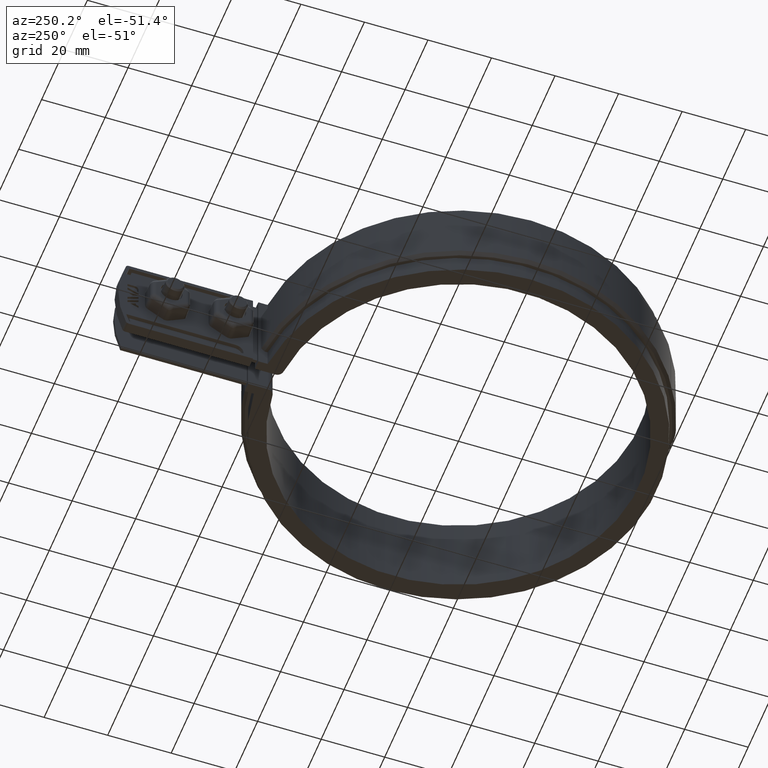
[diagram: clean part render]
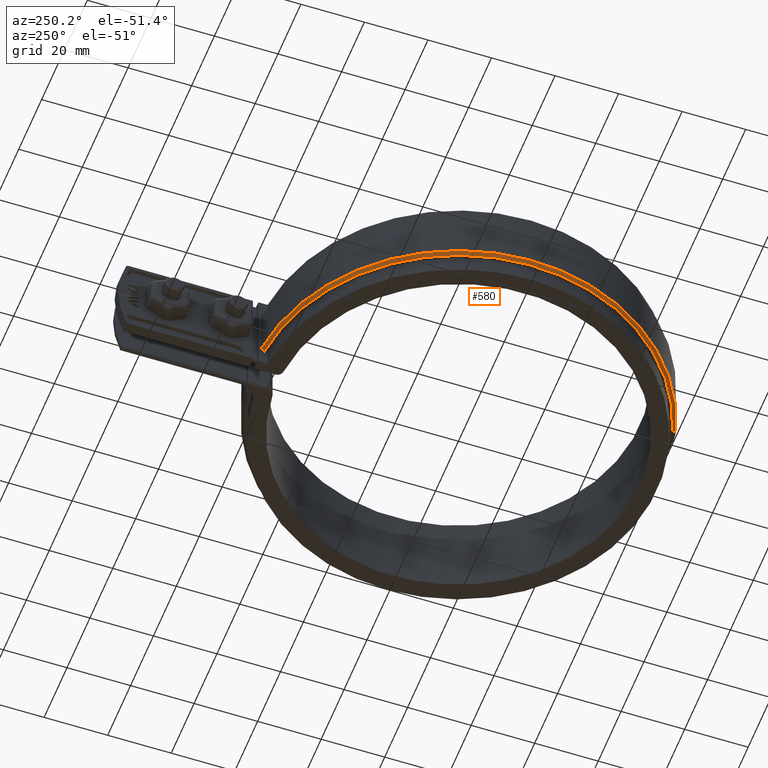
[diagram: same view with one face highlighted and labeled with its STEP entity id]
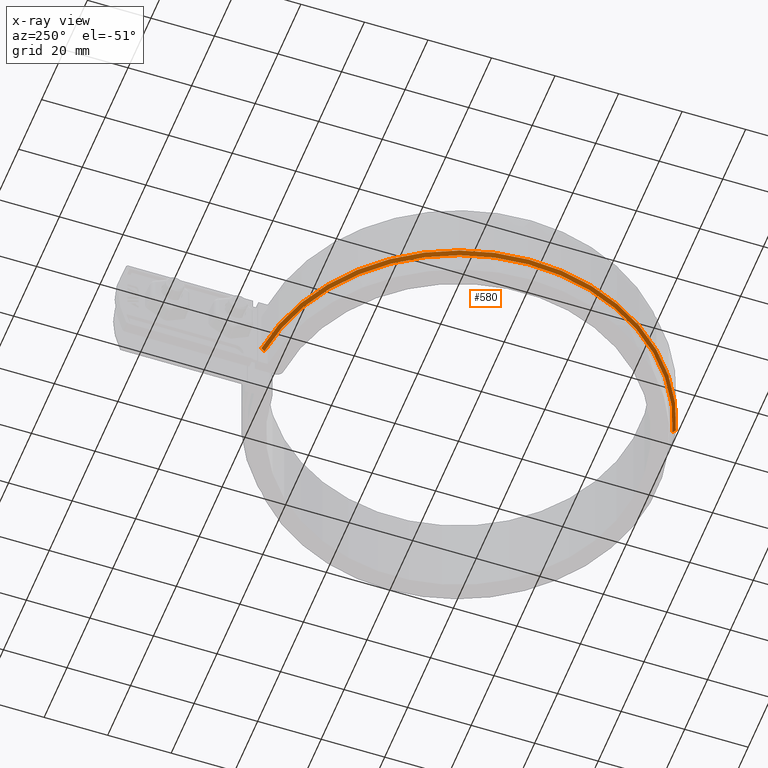
[diagram: x-ray of the same camera — body ghosted, the highlighted face saturated]
A machine part, auxiliary view. The second image highlights one B-rep face of the part: STEP entity #580.
The next image is the same camera in x-ray: the body ghosted, the highlighted face saturated — about 0% of this face is hidden behind the body in this view.
In plain terms, the highlighted conical surface has half-angle 45 deg.
Its self-contained STEP definition (entity closure, byte-faithful):
#580 = ADVANCED_FACE( '', ( #1074 ), #1075, .T. );
#1074 = FACE_OUTER_BOUND( '', #2393, .T. );
#1075 = CONICAL_SURFACE( '', #2394, 64.5000000000000, 0.785398163397448 );
#2393 = EDGE_LOOP( '', ( #5074, #5075, #5076, #5077 ) );
#2394 = AXIS2_PLACEMENT_3D( '', #5078, #5079, #5080 );
#5074 = ORIENTED_EDGE( '', *, *, #7232, .F. );
#5075 = ORIENTED_EDGE( '', *, *, #7312, .F. );
#5076 = ORIENTED_EDGE( '', *, *, #7321, .F. );
#5077 = ORIENTED_EDGE( '', *, *, #7301, .F. );
#5078 = CARTESIAN_POINT( '', ( -8.67361737988404E-016, 1.38777878078145E-014, -7.50000000000000 ) );
#5079 = DIRECTION( '', ( 0.000000000000000, 0.000000000000000, 1.00000000000000 ) );
#5080 = DIRECTION( '', ( 1.00000000000000, 0.000000000000000, 0.000000000000000 ) );
#7232 = EDGE_CURVE( '', #8378, #8380, #8381, .T. );
#7301 = EDGE_CURVE( '', #8380, #8493, #8494, .T. );
#7312 = EDGE_CURVE( '', #8508, #8378, #8510, .F. );
#7321 = EDGE_CURVE( '', #8493, #8508, #8521, .T. );
#8378 = VERTEX_POINT( '', #12164 );
#8380 = VERTEX_POINT( '', #12167 );
#8381 = B_SPLINE_CURVE_WITH_KNOTS( '', 3, ( #12168, #12169, #12170, #12171 ), .UNSPECIFIED., .F., .F., ( 4, 4 ), ( 0.000000000000000, 0.00141734524585473 ), .UNSPECIFIED. );
#8493 = VERTEX_POINT( '', #12335 );
#8494 = CIRCLE( '', #12336, 64.5000000000000 );
#8508 = VERTEX_POINT( '', #12356 );
#8510 = CIRCLE( '', #12358, 63.5000000000000 );
#8521 = LINE( '', #12375, #12376 );
#12164 = CARTESIAN_POINT( '', ( -6.00000000000000, 63.2158998986806, -8.50000000000000 ) );
#12167 = CARTESIAN_POINT( '', ( -6.00000000000000, 64.2203238858229, -7.50000000000000 ) );
#12168 = CARTESIAN_POINT( '', ( -6.00000000000000, 63.2158998986806, -8.50000000000000 ) );
#12169 = CARTESIAN_POINT( '', ( -6.00000000000000, 63.5507195316811, -8.16667835584443 ) );
#12170 = CARTESIAN_POINT( '', ( -6.00000000000000, 63.8855273465806, -7.83334484009294 ) );
#12171 = CARTESIAN_POINT( '', ( -6.00000000000000, 64.2203238858229, -7.50000000000000 ) );
#12335 = CARTESIAN_POINT( '', ( -18.3698391239513, -61.8287878787879, -7.50000000000000 ) );
#12336 = AXIS2_PLACEMENT_3D( '', #14252, #14253, #14254 );
#12356 = CARTESIAN_POINT( '', ( -18.0850354166032, -60.8702020202020, -8.50000000000000 ) );
#12358 = AXIS2_PLACEMENT_3D( '', #14273, #14274, #14275 );
#12375 = CARTESIAN_POINT( '', ( -18.3698391239513, -61.8287878787879, -7.50000000000000 ) );
#12376 = VECTOR( '', #14288, 1000.00000000000 );
#14252 = CARTESIAN_POINT( '', ( -8.67361737988404E-016, 1.38777878078145E-014, -7.50000000000000 ) );
#14253 = DIRECTION( '', ( 0.000000000000000, 0.000000000000000, 1.00000000000000 ) );
#14254 = DIRECTION( '', ( 1.00000000000000, 0.000000000000000, 0.000000000000000 ) );
#14273 = CARTESIAN_POINT( '', ( -8.67361737988404E-016, 1.38777878078145E-014, -8.50000000000000 ) );
#14274 = DIRECTION( '', ( 0.000000000000000, 0.000000000000000, 1.00000000000000 ) );
#14275 = DIRECTION( '', ( 1.00000000000000, 0.000000000000000, 0.000000000000000 ) );
#14288 = DIRECTION( '', ( 0.201386632772898, 0.677822560955589, -0.707106781186548 ) );